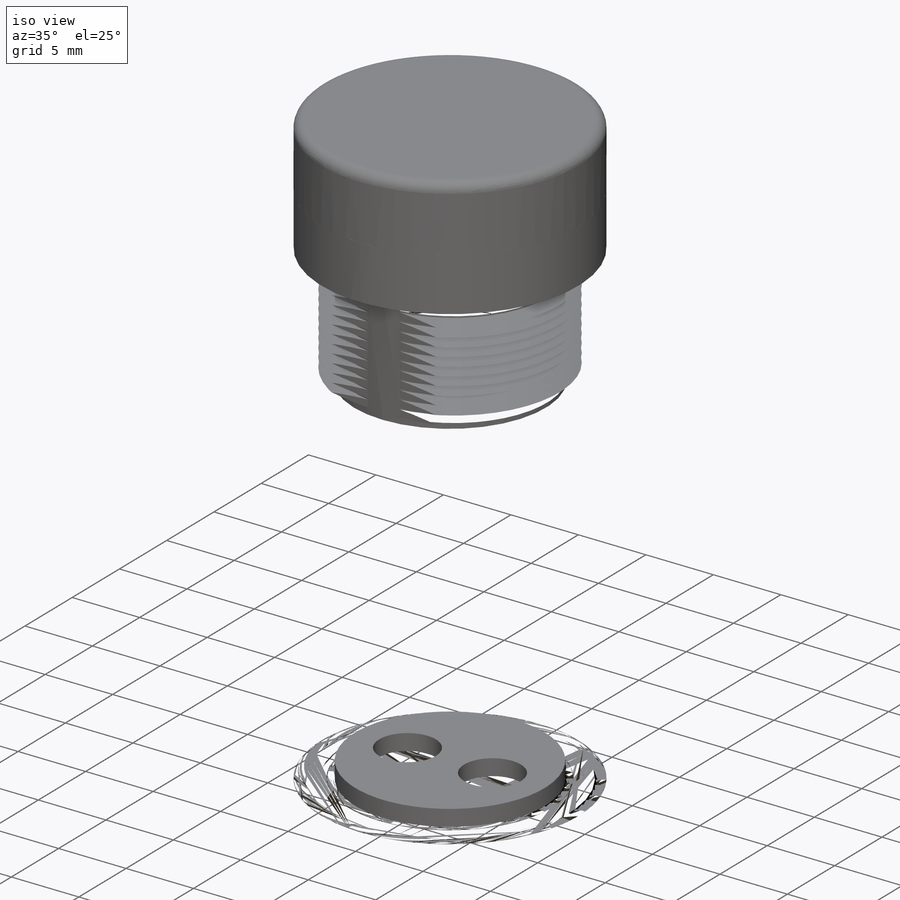
[diagram: iso view]
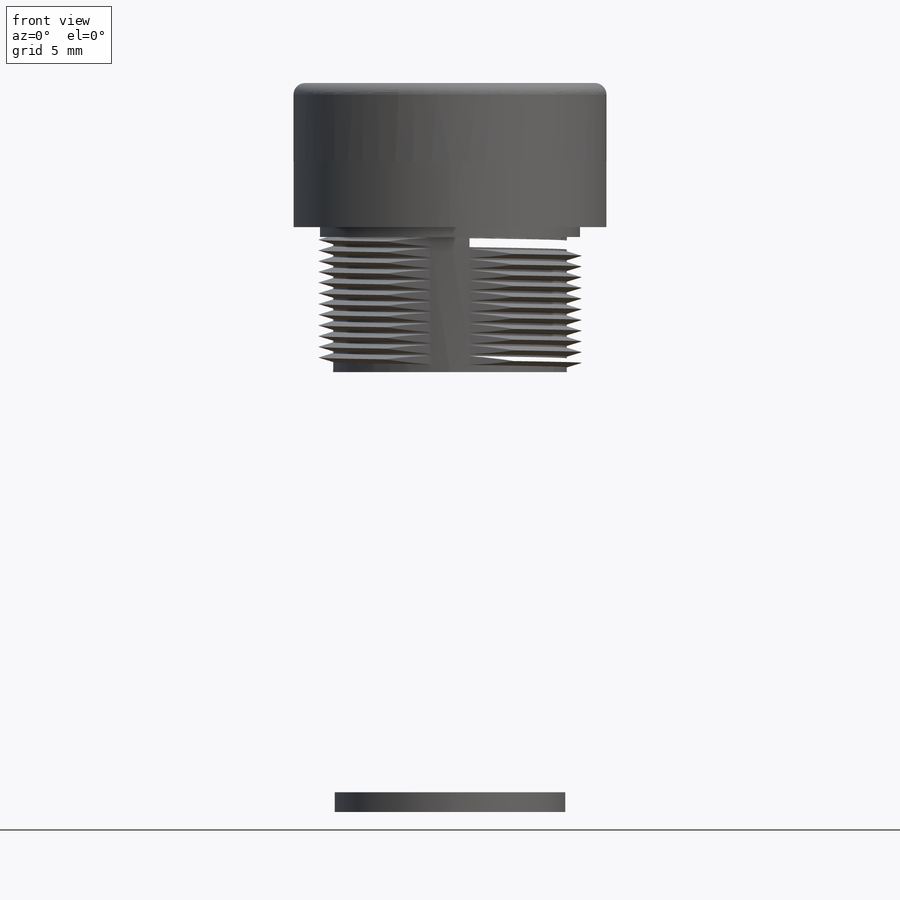
[diagram: front view]
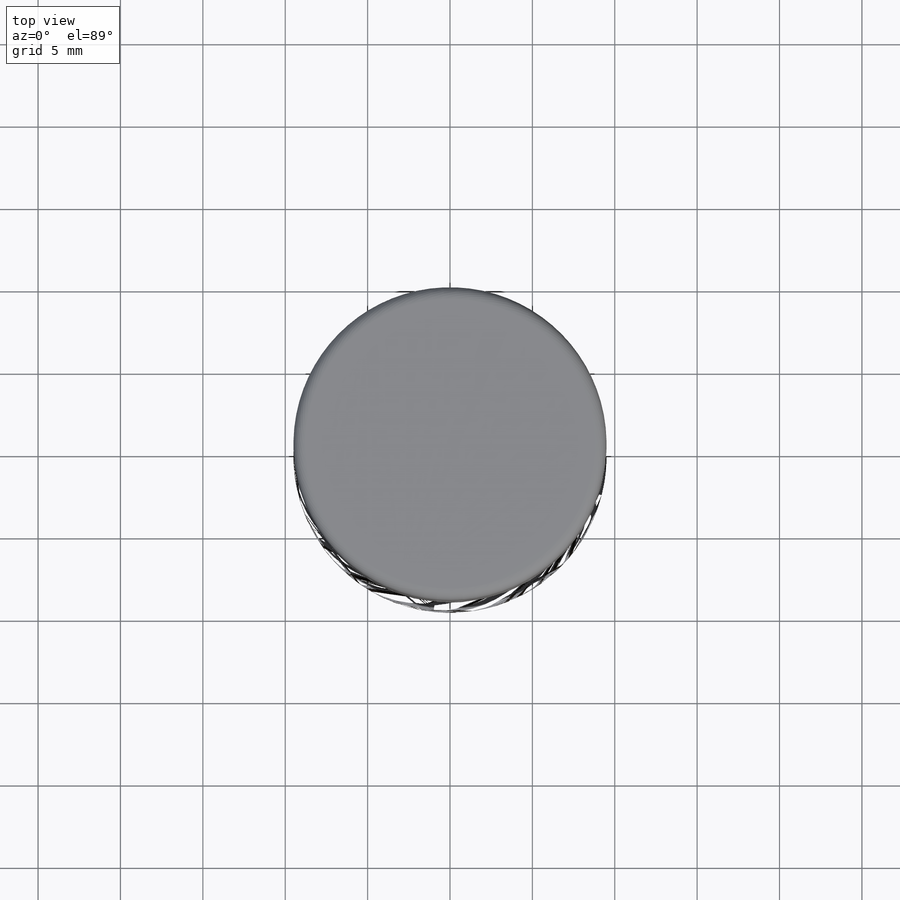
[diagram: top view]
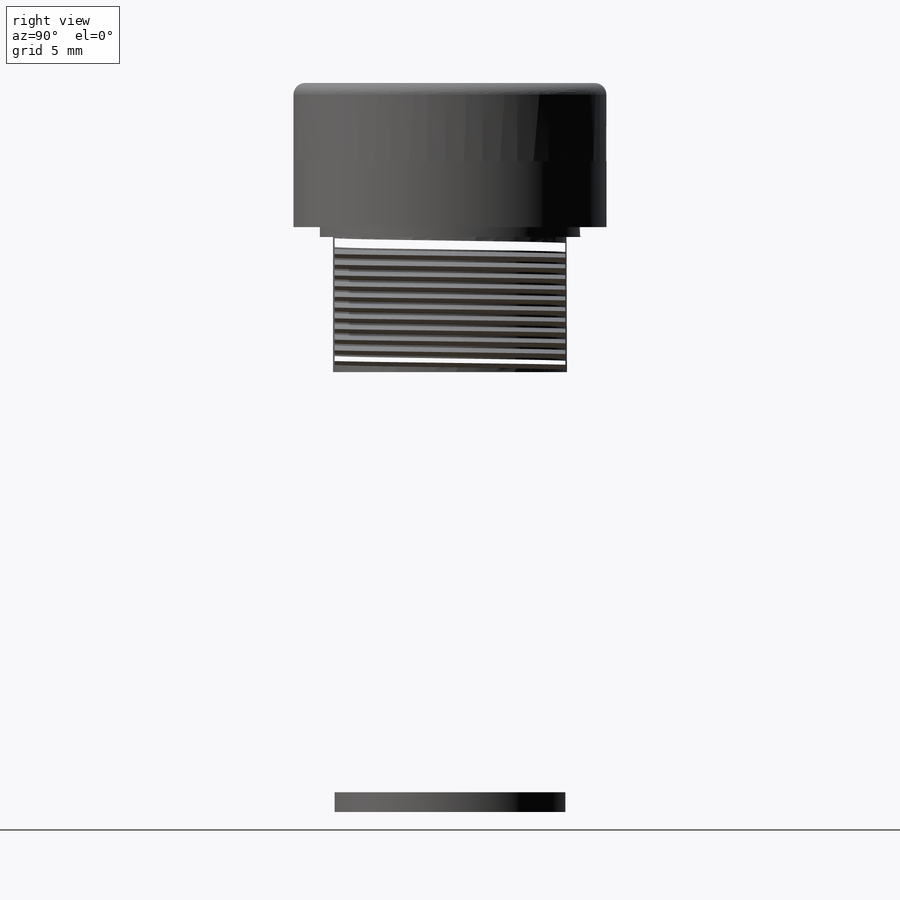
[diagram: right view]
SOLIDWORKS PART (.sldprt)
format: sldprt  version: not decoded by parser v0  size: 1,811,456 bytes
history: native  units: mm
features: sketch x14, extrude x8, plane x5, cut_extrude x3, material x1, shell x1, fillet x1, revolve x1, helix x1, sweep x1 (+9 scaffold rows collapsed)
feature tree (45):
  scaffold x9  (default folders/planes/origin — collapsed)
  material  "Material <not specified>"
  plane  "Plano frontal"
  plane  "Plano superior"
  plane  "Plano direito"
  sketch  "Sketch1"  dims[c1.D1=14.0mm c1.D2=4.2mm c1.D3=4.2mm c1.D4=4.2mm c2.D3=1.75mm c2.D4=1.75mm]
  extrude  "Boss-Extrude1"  Depth=1.2mm
  sketch  "Sketch2"
  extrude  "Boss-Extrude2"  Depth=34.3mm
  sketch  "Sketch3"  dims[D1=2.0mm D2=6.0mm D3=1.0mm D4=3.0mm D5=9.8mm D6=3.3mm D7=7.0mm]
  cut_extrude  "Cut-Extrude1"  [1 undecoded]
  shell  "Shell3"  Thickness=1mm
  sketch  "Sketch4"  dims[D1=1.0mm]
  extrude  "Boss-Extrude3"  Depth=8mm
  sketch  "Sketch8"  dims[D1=19.0mm D2=13.0mm]
  extrude  "Boss-Extrude6"  Depth=4mm
  plane  "Plane2"  Offset=0.4mm
  sketch  "Sketch19"  dims[D1=16.0mm]
  cut_extrude  "Cut-Extrude3"  Depth=3.7mm
  sketch  "Sketch9"  dims[D1=0.0mm]
  extrude  "Boss-Extrude7"  Depth=7mm
  fillet  "Fillet1"  Radius=0.5mm
  sketch  "Sketch10"  dims[c1.D2=0.7mm c1.D1=4.75mm c1.D4=0.1mm c2.D1=4.75mm c2.D4=0.001mm c2.D3=1.0mm]
  revolve  "Revolve2"  Angle=360deg
  sketch  "Sketch11"  dims[D1=15.8mm]
  extrude  "Boss-Extrude8"  Depth=0.6mm
  sketch  "Sketch12"
  helix  "Helix/Spiral1"  Pitch=7.8mm
  plane  "Plane1"
  sketch  "Sketch14"  dims[D1=0.6mm D2=1.0mm]
  sweep  "Sweep1"
  sketch  "Sketch16"  dims[D2=7.0mm D1=0.0mm]
  cut_extrude  "Cut-Extrude2"  [1 undecoded]
  sketch  "Sketch17"  dims[D1=14.0mm]
  extrude  "Boss-Extrude10"  Depth=8.2mm
  sketch  "Sketch18"  dims[D1=0.0mm]
  extrude  "Boss-Extrude11"  Depth=1.7mm
decode coverage: 25 of 30 modeling features carry decoded parameters
note: 2 parameter values undecoded
note: suppression state not decoded; provenance and decode notes live in map.json
